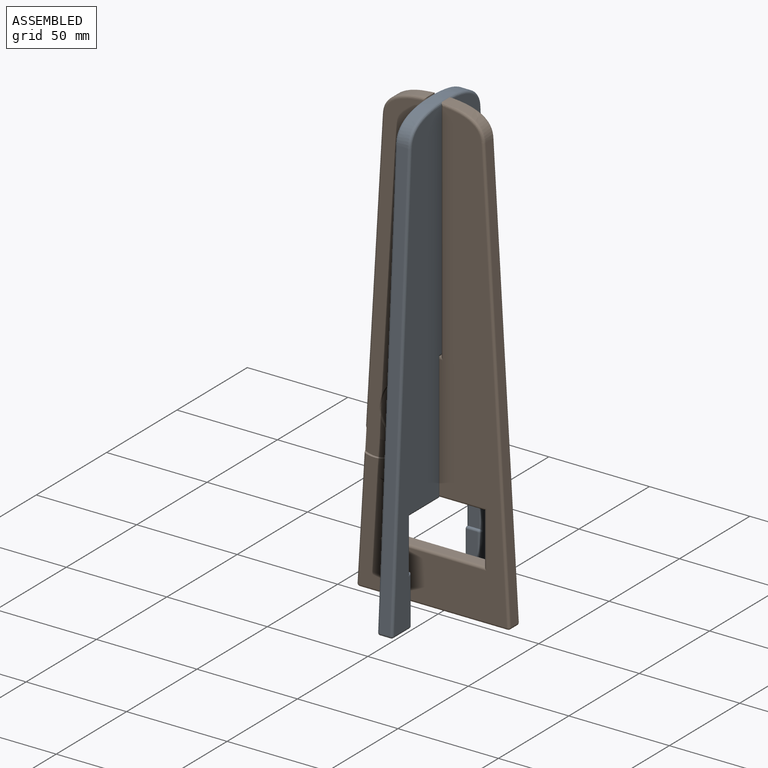
[diagram: assembled view]
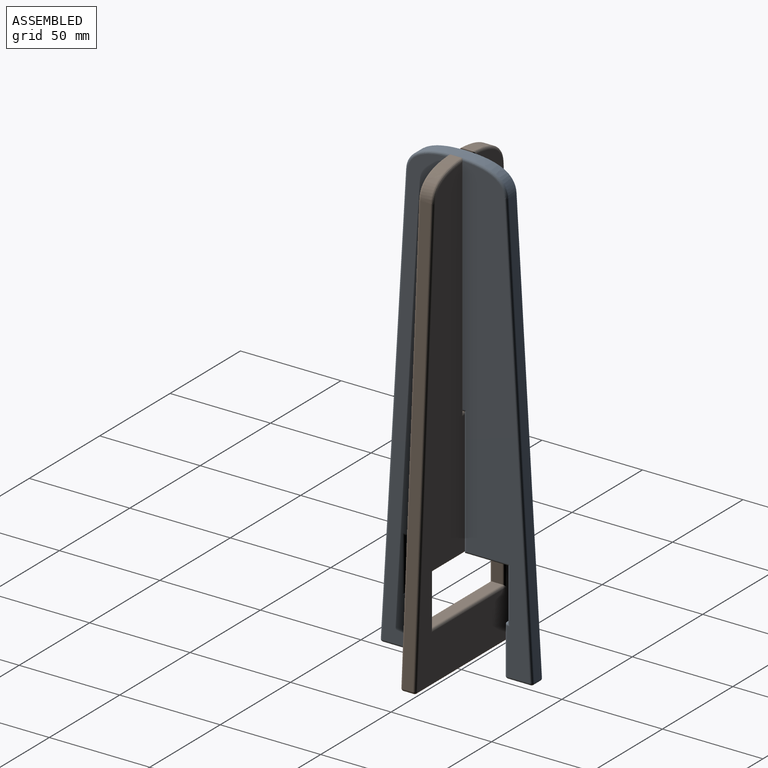
[diagram: assembled view, second angle]
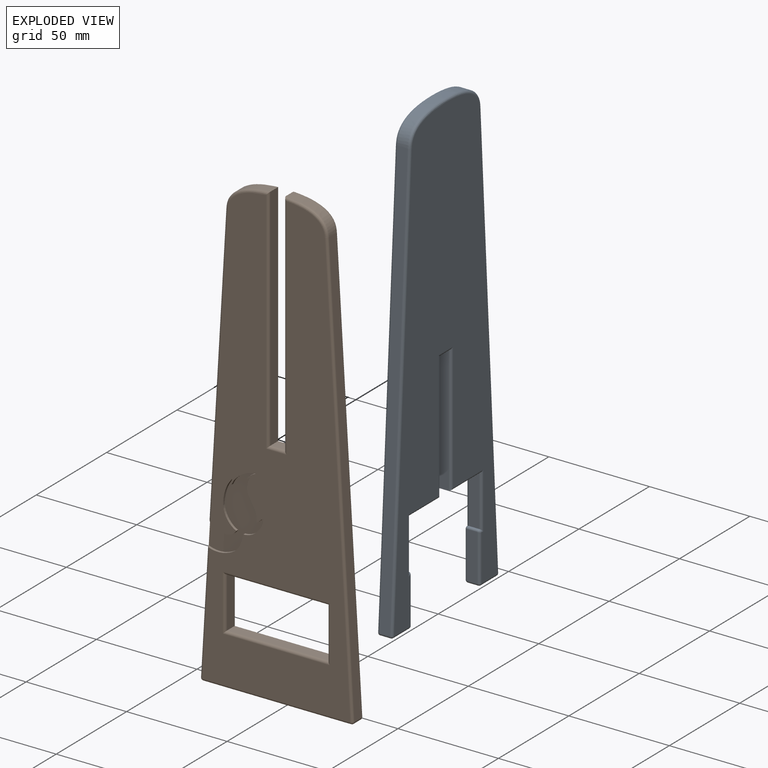
[diagram: exploded view]
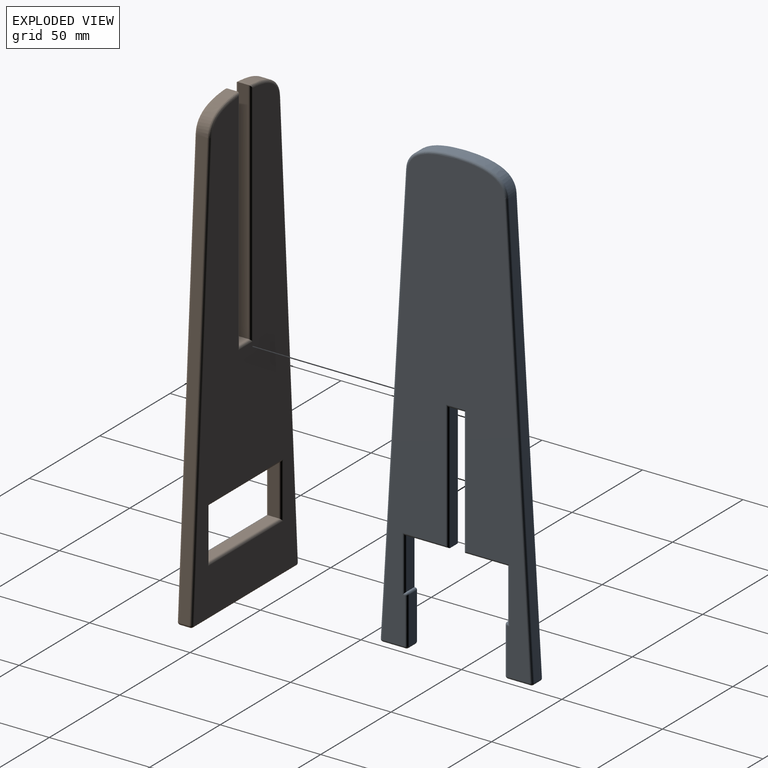
[diagram: exploded view, second angle]
ASSEMBLY  parts=2 mates=3
PART A: 71 faces, bbox 76x228.6x7.6 mm
  f0: cylinder r=1.27mm len=5.08mm, axis (0,0,-1), area 10.5mm2, adj f1,f22,f43,f66
  f1: plane 214.56x12.62mm, normal (1,0.06,0), area 1091.8mm2, adj f0,f2,f41,f64
  f2: extruded ~25.4x12.7mm, area 159.4mm2, adj f1,f3,f39,f62
  f3: extruded ~25.4x12.7mm, area 159.4mm2, adj f2,f4,f37,f60
  f4: plane 214.56x12.62mm, normal (-1,0.06,0), area 1091.8mm2, adj f3,f5,f35,f58
  f5: cylinder r=1.27mm len=5.08mm, axis (0,0,-1), area 10.5mm2, adj f4,f6,f33,f56
  f6: plane 11.35x5.08mm, normal (0,-1,0), area 57.7mm2, adj f5,f7,f31,f54
  f7: cylinder r=1.27mm len=5.08mm, axis (0,0,-1), area 10.1mm2, adj f6,f8,f29,f52
  f8: plane 23.18x5.08mm, normal (1,0,0), area 117.7mm2, adj f7,f9,f27,f50
  f9: cylinder r=0.95mm len=5.08mm, axis (0,0,-1), area 7.6mm2, adj f8,f10,f25,f48
  f10: plane 5.08x0.32mm, normal (0,1,0), area 1.6mm2, adj f9,f11,f26,f49
  f11: plane 25.4x5.08mm, normal (1,0,0), area 129mm2, adj f10,f12,f28,f51
  f12: plane 21.59x5.08mm, normal (0,-1,0), area 109.7mm2, adj f11,f13,f30,f53
  f13: plane 63.5x5.08mm, normal (1,0,0), area 322.6mm2, adj f12,f14,f32,f55
  f14: plane 7.62x5.08mm, normal (0,-1,0), area 38.7mm2, adj f13,f15,f34,f57
  f15: plane 63.5x5.08mm, normal (-1,0,0), area 322.6mm2, adj f14,f16,f36,f59
  f16: plane 21.59x5.08mm, normal (0,-1,0), area 109.7mm2, adj f15,f17,f38,f61
  f17: plane 25.4x5.08mm, normal (-1,0,0), area 129mm2, adj f16,f18,f40,f63
  f18: plane 5.08x0.32mm, normal (0,1,0), area 1.6mm2, adj f17,f19,f42,f65
  f19: cylinder r=0.95mm len=5.08mm, axis (0,0,-1), area 7.6mm2, adj f18,f20,f44,f67
  f20: plane 23.18x5.08mm, normal (-1,0,0), area 117.7mm2, adj f19,f21,f46,f69
  f21: cylinder r=1.27mm len=5.08mm, axis (0,0,-1), area 10.1mm2, adj f20,f22,f47,f70
  f22: plane 11.35x5.08mm, normal (0,-1,0), area 57.7mm2, adj f0,f21,f45,f68
  f23: plane 226.06x73.51mm, normal (0,0,1), area 10224.2mm2, adj f49,f50,f51,f53,f54,f55,f57,f58
  f24: plane 226.06x73.51mm, normal (0,0,-1), area 10224.2mm2, adj f26,f27,f28,f30,f31,f32,f34,f35
  f25: bspline ~1.56x1.27mm, area 1.9mm2, adj f9,f26,f27
  f26: cylinder r=1.27mm len=1.59mm, axis (-1,0,0), area 1.2mm2, adj f10,f24,f25,f28
  f27: cylinder r=1.27mm len=23.18mm, axis (0,1,0), area 45.9mm2, adj f8,f24,f25,f29
  f28: cylinder r=1.27mm len=27.94mm, axis (0,1,0), area 52.5mm2, adj f11,f24,f26,f30
  f29: sphere r=1.27mm, area 2.5mm2, adj f7,f27,f31
  f30: cylinder r=1.27mm len=22.86mm, axis (1,0,0), area 43.1mm2, adj f12,f24,f28,f32
  f31: cylinder r=1.27mm len=11.35mm, axis (1,0,0), area 22.6mm2, adj f6,f24,f29,f33
  f32: cylinder r=1.27mm len=64.77mm, axis (0,1,0), area 126.7mm2, adj f13,f24,f30,f34
  f33: sphere r=1.27mm, area 2.6mm2, adj f5,f31,f35
  f34: cylinder r=1.27mm len=10.16mm, axis (1,0,0), area 17mm2, adj f14,f24,f32,f36
  f35: cylinder r=1.27mm len=214.63mm, axis (-0.06,-1,0), area 428.8mm2, adj f4,f24,f33,f37
  f36: cylinder r=1.27mm len=64.77mm, axis (0,-1,0), area 126.7mm2, adj f15,f24,f34,f38
  f37: bspline ~37.49x18.44mm, area 61.2mm2, adj f3,f24,f35,f39
  f38: cylinder r=1.27mm len=22.86mm, axis (1,0,0), area 43.1mm2, adj f16,f24,f36,f40
  f39: bspline ~37.49x18.44mm, area 61.2mm2, adj f2,f24,f37,f41
  f40: cylinder r=1.27mm len=27.94mm, axis (0,-1,0), area 52.5mm2, adj f17,f24,f38,f42
  f41: cylinder r=1.27mm len=214.63mm, axis (-0.06,1,0), area 428.8mm2, adj f1,f24,f39,f43
  f42: cylinder r=1.27mm len=1.59mm, axis (-1,0,0), area 1.2mm2, adj f18,f24,f40,f44
  f43: sphere r=1.27mm, area 2.6mm2, adj f0,f41,f45
  f44: bspline ~1.56x1.27mm, area 1.9mm2, adj f19,f42,f46
  f45: cylinder r=1.27mm len=11.35mm, axis (1,0,0), area 22.6mm2, adj f22,f24,f43,f47
  f46: cylinder r=1.27mm len=23.18mm, axis (0,-1,0), area 45.9mm2, adj f20,f24,f44,f47
  f47: sphere r=1.27mm, area 2.5mm2, adj f21,f45,f46
  f48: bspline ~1.56x1.27mm, area 1.9mm2, adj f9,f49,f50
  f49: cylinder r=1.27mm len=1.59mm, axis (1,0,0), area 1.2mm2, adj f10,f23,f48,f51
  f50: cylinder r=1.27mm len=23.18mm, axis (0,-1,0), area 45.9mm2, adj f8,f23,f48,f52
  f51: cylinder r=1.27mm len=27.94mm, axis (0,-1,0), area 52.5mm2, adj f11,f23,f49,f53
  f52: sphere r=1.27mm, area 2.5mm2, adj f7,f50,f54
  f53: cylinder r=1.27mm len=22.86mm, axis (-1,0,0), area 43.1mm2, adj f12,f23,f51,f55
  f54: cylinder r=1.27mm len=11.35mm, axis (-1,0,0), area 22.6mm2, adj f6,f23,f52,f56
  f55: cylinder r=1.27mm len=64.77mm, axis (0,-1,0), area 126.7mm2, adj f13,f23,f53,f57
  f56: sphere r=1.27mm, area 2.6mm2, adj f5,f54,f58
  f57: cylinder r=1.27mm len=10.16mm, axis (-1,0,0), area 17mm2, adj f14,f23,f55,f59
  f58: cylinder r=1.27mm len=214.63mm, axis (0.06,1,0), area 428.8mm2, adj f4,f23,f56,f60
  f59: cylinder r=1.27mm len=64.77mm, axis (0,1,0), area 126.7mm2, adj f15,f23,f57,f61
  f60: bspline ~37.49x18.44mm, area 61.2mm2, adj f3,f23,f58,f62
  f61: cylinder r=1.27mm len=22.86mm, axis (-1,0,0), area 43.1mm2, adj f16,f23,f59,f63
  f62: bspline ~37.49x18.44mm, area 61.2mm2, adj f2,f23,f60,f64
  f63: cylinder r=1.27mm len=27.94mm, axis (0,1,0), area 52.5mm2, adj f17,f23,f61,f65
  f64: cylinder r=1.27mm len=214.63mm, axis (0.06,-1,0), area 428.8mm2, adj f1,f23,f62,f66
  f65: cylinder r=1.27mm len=1.59mm, axis (1,0,0), area 1.2mm2, adj f18,f23,f63,f67
  f66: sphere r=1.27mm, area 2.6mm2, adj f0,f64,f68
  f67: bspline ~1.56x1.27mm, area 1.9mm2, adj f19,f65,f69
  f68: cylinder r=1.27mm len=11.35mm, axis (-1,0,0), area 22.6mm2, adj f22,f23,f66,f70
  f69: cylinder r=1.27mm len=23.18mm, axis (0,1,0), area 45.9mm2, adj f20,f23,f67,f70
  f70: sphere r=1.27mm, area 2.5mm2, adj f21,f68,f69
PART B: 56 faces, bbox 76x228.5x7.6 mm
  f0: plane 225.91x73.51mm, normal (0,0,1), area 10397.3mm2, adj f1,f2,f32,f33,f34,f35,f36,f37
  f1: cylinder r=1.27mm len=143.64mm, axis (0.06,1,0), area 285.8mm2, adj f0,f15,f43,f45
  f2: cylinder r=1.27mm len=60.06mm, axis (0.06,1,0), area 119.5mm2, adj f0,f15,f44,f46
  f3: plane 50.8x5.08mm, normal (0,-1,0), area 258.1mm2, adj f4,f16,f18,f32
  f4: plane 25.4x5.08mm, normal (-1,0,0), area 129mm2, adj f3,f5,f19,f33
  f5: plane 50.8x5.08mm, normal (0,1,0), area 258.1mm2, adj f4,f16,f21,f35
  f6: cylinder r=1.27mm len=5.08mm, axis (0,0,-1), area 10.5mm2, adj f7,f15,f30,f44
  f7: plane 73.51x5.08mm, normal (0,-1,0), area 373.4mm2, adj f6,f8,f28,f42
  f8: cylinder r=1.27mm len=5.08mm, axis (0,0,-1), area 10.5mm2, adj f7,f9,f26,f40
  f9: plane 214.56x12.62mm, normal (1,0.06,0), area 1091.8mm2, adj f8,f10,f24,f38
  f10: extruded ~21.59x12.62mm, area 140mm2, adj f9,f11,f22,f36
  f11: plane 114.22x5.08mm, normal (-1,0,0), area 580.2mm2, adj f10,f12,f23,f37
  f12: plane 7.62x5.08mm, normal (0,1,0), area 38.7mm2, adj f11,f13,f25,f39
  f13: plane 114.22x5.08mm, normal (1,0,0), area 580.2mm2, adj f12,f14,f27,f41
  f14: extruded ~21.59x12.62mm, area 140mm2, adj f13,f15,f29,f43
  f15: plane 214.56x12.62mm, normal (-1,0.06,0), area 1091.8mm2, adj f1,f2,f6,f14,f31,f55
  f16: plane 25.4x5.08mm, normal (1,0,0), area 129mm2, adj f3,f5,f20,f34
  f17: plane 225.91x73.51mm, normal (0,0,-1), area 10869.9mm2, adj f18,f19,f20,f21,f22,f23,f24,f25
  f18: cylinder r=1.27mm len=53.34mm, axis (1,0,0), area 103.9mm2, adj f3,f17,f19,f20
  f19: cylinder r=1.27mm len=27.94mm, axis (0,-1,0), area 53.2mm2, adj f4,f17,f18,f21
  f20: cylinder r=1.27mm len=27.94mm, axis (0,1,0), area 53.2mm2, adj f16,f17,f18,f21
  f21: cylinder r=1.27mm len=53.34mm, axis (-1,0,0), area 103.9mm2, adj f5,f17,f19,f20
  f22: bspline ~22.67x18.87mm, area 52.3mm2, adj f10,f17,f23,f24
  f23: cylinder r=1.27mm len=115.49mm, axis (0,-1,0), area 227.8mm2, adj f11,f17,f22,f25
  f24: cylinder r=1.27mm len=214.63mm, axis (-0.06,1,0), area 428.8mm2, adj f9,f17,f22,f26
  f25: cylinder r=1.27mm len=10.16mm, axis (-1,0,0), area 17.7mm2, adj f12,f17,f23,f27
  f26: sphere r=1.27mm, area 2.6mm2, adj f8,f24,f28
  f27: cylinder r=1.27mm len=115.49mm, axis (0,1,0), area 227.8mm2, adj f13,f17,f25,f29
  f28: cylinder r=1.27mm len=73.51mm, axis (1,0,0), area 146.6mm2, adj f7,f17,f26,f30
  f29: bspline ~22.67x18.87mm, area 52.3mm2, adj f14,f17,f27,f31
  f30: sphere r=1.27mm, area 2.6mm2, adj f6,f28,f31
  f31: cylinder r=1.27mm len=214.63mm, axis (-0.06,-1,0), area 428.8mm2, adj f15,f17,f29,f30
  f32: cylinder r=1.27mm len=53.34mm, axis (-1,0,0), area 103.9mm2, adj f0,f3,f33,f34
  f33: cylinder r=1.27mm len=27.94mm, axis (0,1,0), area 53.2mm2, adj f0,f4,f32,f35
  f34: cylinder r=1.27mm len=27.94mm, axis (0,-1,0), area 53.2mm2, adj f0,f16,f32,f35
  f35: cylinder r=1.27mm len=53.34mm, axis (1,0,0), area 103.9mm2, adj f0,f5,f33,f34
  f36: bspline ~22.67x18.87mm, area 52.3mm2, adj f0,f10,f37,f38
  f37: cylinder r=1.27mm len=115.49mm, axis (0,1,0), area 227.8mm2, adj f0,f11,f36,f39
  f38: cylinder r=1.27mm len=214.63mm, axis (0.06,-1,0), area 428.8mm2, adj f0,f9,f36,f40
  f39: cylinder r=1.27mm len=10.16mm, axis (1,0,0), area 17.7mm2, adj f0,f12,f37,f41
  f40: sphere r=1.27mm, area 2.6mm2, adj f8,f38,f42
  f41: cylinder r=1.27mm len=115.49mm, axis (0,-1,0), area 227.8mm2, adj f0,f13,f39,f43
  f42: cylinder r=1.27mm len=73.51mm, axis (-1,0,0), area 146.6mm2, adj f0,f7,f40,f44
  f43: bspline ~22.67x18.87mm, area 52.3mm2, adj f0,f1,f14,f41
  f44: sphere r=1.27mm, area 2.6mm2, adj f2,f6,f42
  f45: extruded ~13.89x4.22mm, area 19.5mm2, adj f0,f1,f54,f55
  f46: extruded ~18.13x11.28mm, area 30.1mm2, adj f0,f2,f47,f55
  f47: extruded ~9.86x9.54mm, area 19.2mm2, adj f0,f46,f48,f55
  f48: extruded ~3.55x2.78mm, area 5.8mm2, adj f0,f47,f49,f55
  f49: extruded ~19.46x4.78mm, area 26.4mm2, adj f0,f48,f50,f55
  f50: extruded ~1.88x1.27mm, area 2.8mm2, adj f0,f49,f51,f55
  f51: extruded ~4.72x3.81mm, area 7.8mm2, adj f0,f50,f52,f55
  f52: extruded ~12.03x8.15mm, area 19.4mm2, adj f0,f51,f53,f55
  f53: extruded ~2.65x1.27mm, area 3.4mm2, adj f0,f52,f54,f55
  f54: extruded ~22.77x6.56mm, area 33.5mm2, adj f0,f45,f53,f55
  f55: plane 40.29x28.1mm, normal (0,0,1), area 487.5mm2, adj f15,f45,f46,f47,f48,f49,f50,f51
PLACE A rot(axis=(0.58,-0.58,-0.58),120deg) t=(3.81,38.1,0)mm
PLACE B rot(axis=(1,0,0),90deg) t=(-38.1,3.81,0)mm
MATE planar B.f0 <-> A.f15  axis (0,-1,0) through (0.91,-3.81,108.77)mm
MATE planar A.f6 <-> B.f7  axis (0,0,-1) through (0,31.08,0)mm
MATE planar A.f23 <-> B.f13  axis (-1,0,0) through (-3.81,0,126.82)mm
